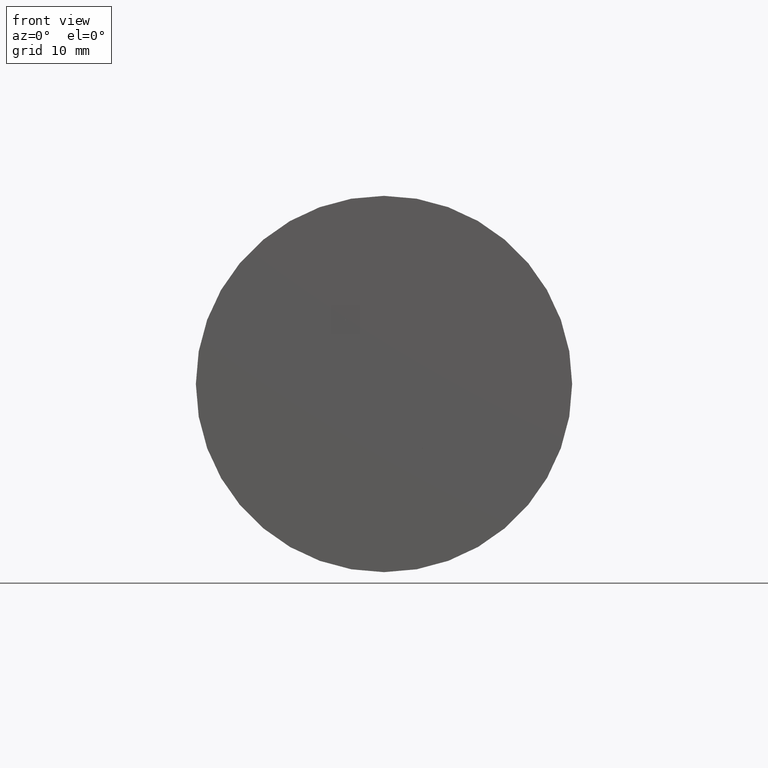
[diagram: clean part render]
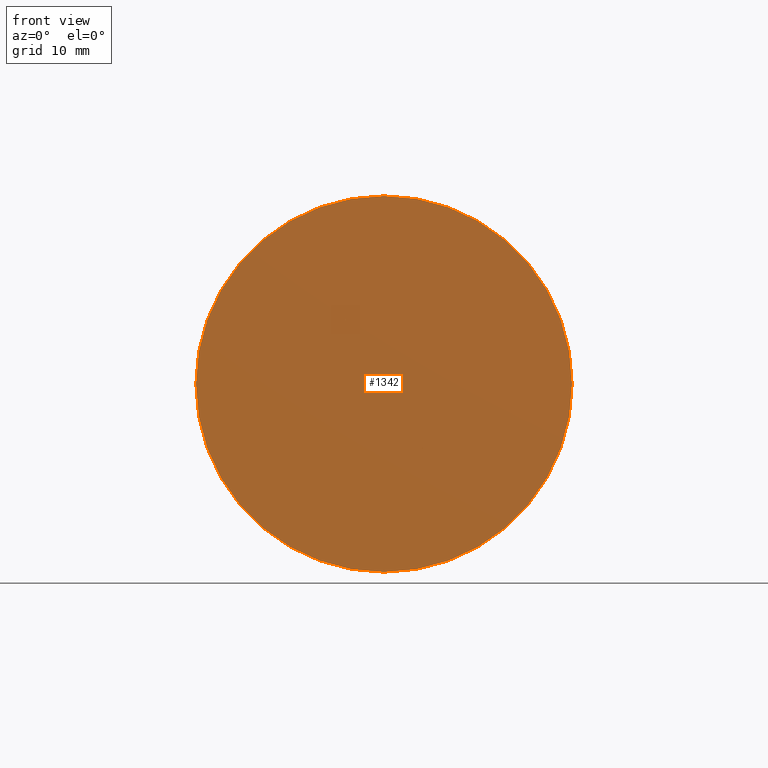
[diagram: same view with one face highlighted and labeled with its STEP entity id]
A machine part, front view. The second image highlights one B-rep face of the part: STEP entity #1342.
In plain terms, the highlighted planar face has unit normal (0, 1, 0).
Its self-contained STEP definition (entity closure, byte-faithful):
#560 = CIRCLE ( 'NONE', #821, 30.00000000000000000 ) ;
#577 = CIRCLE ( 'NONE', #844, 30.00000000000000000 ) ;
#610 = FACE_OUTER_BOUND ( 'NONE', #1427, .T. ) ;
#763 = ORIENTED_EDGE ( 'NONE', *, *, #1024, .F. ) ;
#767 = ORIENTED_EDGE ( 'NONE', *, *, #1011, .F. ) ;
#821 = AXIS2_PLACEMENT_3D ( 'NONE', #1396, #1397, #1398 ) ;
#844 = AXIS2_PLACEMENT_3D ( 'NONE', #916, #917, #918 ) ;
#916 = CARTESIAN_POINT ( 'NONE',  ( 0.0000000000000000000, 0.0000000000000000000, 0.0000000000000000000 ) ) ;
#917 = DIRECTION ( 'NONE',  ( 0.0000000000000000000, 1.000000000000000000, 0.0000000000000000000 ) ) ;
#918 = DIRECTION ( 'NONE',  ( 0.0000000000000000000, 0.0000000000000000000, 1.000000000000000000 ) ) ;
#984 = CARTESIAN_POINT ( 'NONE',  ( 3.673940397442059200E-015, 0.0000000000000000000, 30.00000000000000000 ) ) ;
#990 = CARTESIAN_POINT ( 'NONE',  ( 0.0000000000000000000, 0.0000000000000000000, -30.00000000000000000 ) ) ;
#1011 = EDGE_CURVE ( 'NONE', #1136, #1142, #560, .T. ) ;
#1024 = EDGE_CURVE ( 'NONE', #1142, #1136, #577, .T. ) ;
#1032 = PLANE ( 'NONE',  #1484 ) ;
#1033 = CARTESIAN_POINT ( 'NONE',  ( 0.0000000000000000000, 0.0000000000000000000, 0.0000000000000000000 ) ) ;
#1034 = DIRECTION ( 'NONE',  ( 0.0000000000000000000, 1.000000000000000000, 0.0000000000000000000 ) ) ;
#1035 = DIRECTION ( 'NONE',  ( 0.0000000000000000000, -0.0000000000000000000, 1.000000000000000000 ) ) ;
#1136 = VERTEX_POINT ( 'NONE', #984 ) ;
#1142 = VERTEX_POINT ( 'NONE', #990 ) ;
#1342 = ADVANCED_FACE ( 'NONE', ( #610 ), #1032, .F. ) ;
#1396 = CARTESIAN_POINT ( 'NONE',  ( 0.0000000000000000000, 0.0000000000000000000, 0.0000000000000000000 ) ) ;
#1397 = DIRECTION ( 'NONE',  ( 0.0000000000000000000, 1.000000000000000000, 0.0000000000000000000 ) ) ;
#1398 = DIRECTION ( 'NONE',  ( 0.0000000000000000000, 0.0000000000000000000, 1.000000000000000000 ) ) ;
#1427 = EDGE_LOOP ( 'NONE', ( #763, #767 ) ) ;
#1484 = AXIS2_PLACEMENT_3D ( 'NONE', #1033, #1034, #1035 ) ;